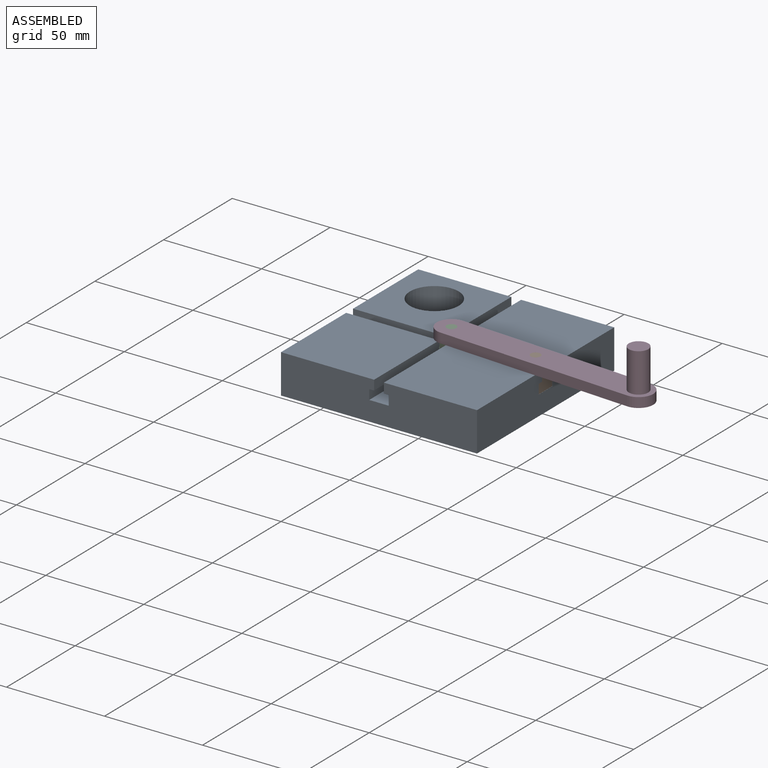
[diagram: assembled view]
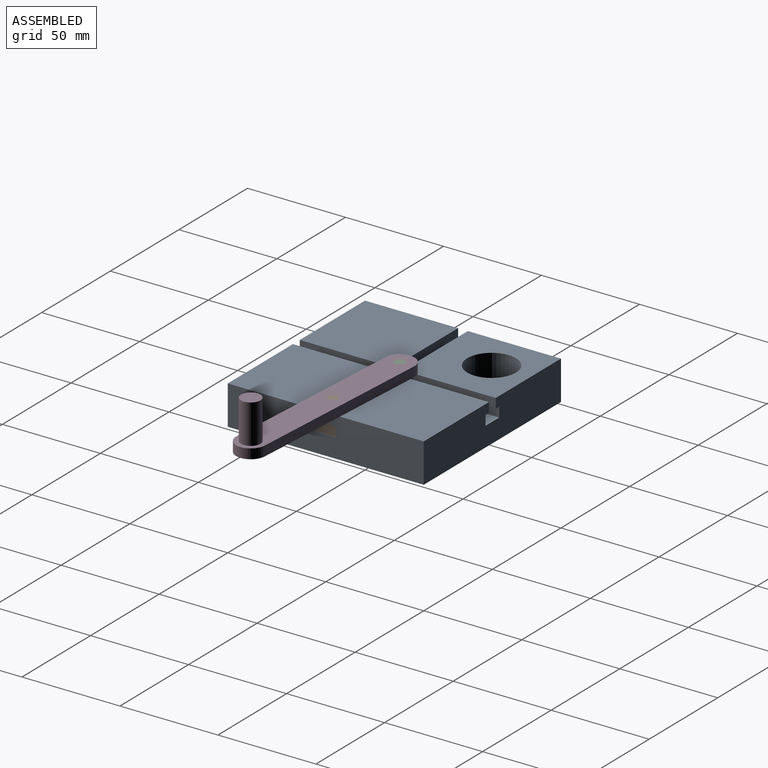
[diagram: assembled view, second angle]
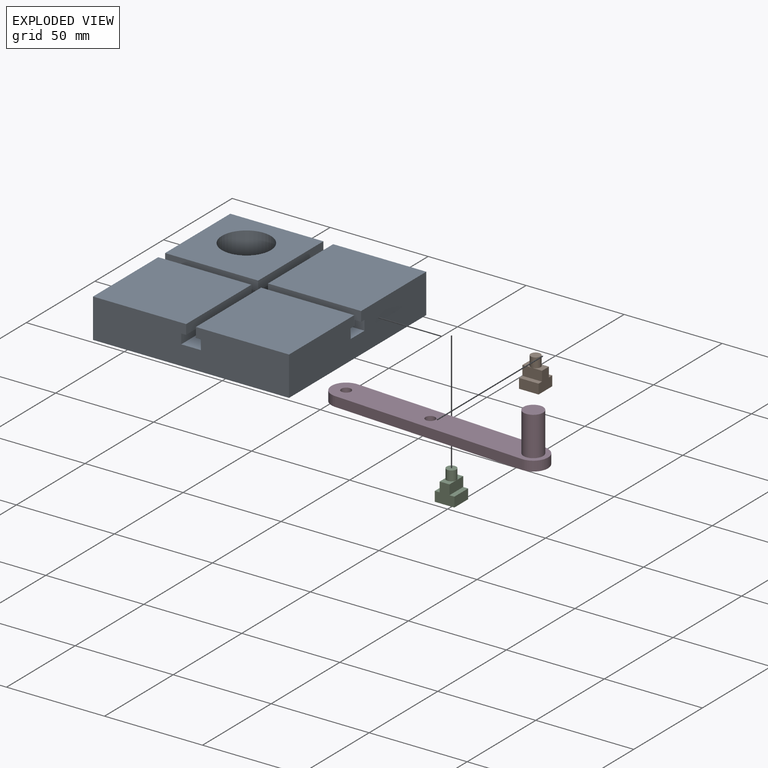
[diagram: exploded view]
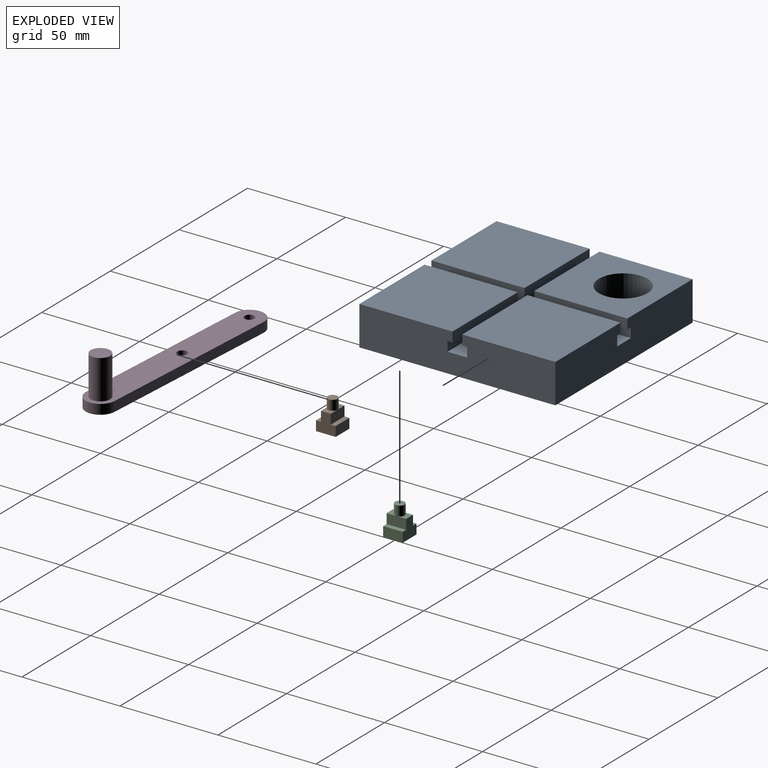
[diagram: exploded view, second angle]
ASSEMBLY  parts=4 mates=4
PART A: 31 faces, bbox 100x100x20 mm
  f0: plane 47.5x47.5mm, normal (0,0,1), area 2256.2mm2, adj f7,f10,f12,f23
  f1: plane 47.5x47.5mm, normal (0,0,1), area 1769.2mm2, adj f4,f10,f11,f29,f30
  f2: plane 47.5x47.5mm, normal (0,0,-1), area 231.3mm2, adj f4,f5,f10,f11,f27,f29
  f3: plane 47.5x47.5mm, normal (0,0,-1), area 231.3mm2, adj f9,f12,f19,f21,f22,f25
  f4: plane 47.5x5mm, normal (1,0,0), area 237.5mm2, adj f1,f2,f10,f29
  f5: plane 45x5mm, normal (1,0,0), area 225mm2, adj f2,f10,f18,f27
  f6: plane 45x5mm, normal (-1,0,0), area 225mm2, adj f10,f18,f20,f24
  f7: plane 47.5x5mm, normal (-1,0,0), area 237.5mm2, adj f0,f10,f20,f23
  f8: plane 47.5x47.5mm, normal (0,0,1), area 2256.2mm2, adj f9,f12,f21,f25
  f9: plane 100x20mm, normal (0,-1,0), area 1925mm2, adj f3,f8,f11,f12,f13,f14,f15,f16
  f10: plane 100x20mm, normal (0,1,0), area 1925mm2, adj f0,f1,f2,f4,f5,f6,f7,f11
  f11: plane 100x20mm, normal (-1,0,0), area 1925mm2, adj f1,f2,f9,f10,f13,f14,f16,f18
  f12: plane 100x20mm, normal (1,0,0), area 1925mm2, adj f0,f3,f8,f9,f10,f14,f18,f20
  f13: plane 47.5x47.5mm, normal (0,0,1), area 2256.3mm2, adj f9,f11,f15,f28
  f14: plane 100x100mm, normal (0,0,-1), area 9512.9mm2, adj f9,f10,f11,f12,f30
  f15: plane 47.5x5mm, normal (1,0,0), area 237.5mm2, adj f9,f13,f16,f28
  f16: plane 47.5x47.5mm, normal (0,0,-1), area 231.3mm2, adj f9,f11,f15,f17,f26,f28
  f17: plane 45x5mm, normal (1,0,0), area 225mm2, adj f9,f16,f18,f26
  f18: plane 100x100mm, normal (0,0,1), area 1900mm2, adj f5,f6,f9,f10,f11,f12,f17,f19
  f19: plane 45x5mm, normal (-1,0,0), area 225mm2, adj f3,f9,f18,f22
  f20: plane 47.5x47.5mm, normal (0,0,-1), area 231.3mm2, adj f6,f7,f10,f12,f23,f24
  f21: plane 47.5x5mm, normal (-1,0,0), area 237.5mm2, adj f3,f8,f9,f25
  f22: plane 45x5mm, normal (0,1,0), area 225mm2, adj f3,f12,f18,f19
  f23: plane 47.5x5mm, normal (0,-1,0), area 237.5mm2, adj f0,f7,f12,f20
  f24: plane 45x5mm, normal (0,-1,0), area 225mm2, adj f6,f12,f18,f20
  f25: plane 47.5x5mm, normal (0,1,0), area 237.5mm2, adj f3,f8,f12,f21
  f26: plane 45x5mm, normal (0,1,0), area 225mm2, adj f11,f16,f17,f18
  f27: plane 45x5mm, normal (0,-1,0), area 225mm2, adj f2,f5,f11,f18
  f28: plane 47.5x5mm, normal (0,1,0), area 237.5mm2, adj f11,f13,f15,f16
  f29: plane 47.5x5mm, normal (0,-1,0), area 237.5mm2, adj f1,f2,f4,f11
  f30: cylinder r=12.45mm len=24.9mm, axis (0,0,1), area 1564.7mm2, adj f1,f14
PART B: 13 faces, bbox 10x10x15 mm
  f0: plane 5x5mm, normal (0,0,1), area 15.2mm2, adj f2,f4,f9,f11
  f1: plane 10x2.5mm, normal (0,0,1), area 25mm2, adj f2,f8,f9,f10
  f2: plane 10x5mm, normal (1,0,0), area 50mm2, adj f0,f1,f3,f9,f10
  f3: plane 5x5mm, normal (0,0,1), area 15.2mm2, adj f2,f4,f10,f11
  f4: plane 10x5mm, normal (-1,0,0), area 50mm2, adj f0,f3,f5,f9,f10
  f5: plane 10x2.5mm, normal (0,0,1), area 25mm2, adj f4,f6,f9,f10
  f6: plane 10x5mm, normal (-1,0,0), area 50mm2, adj f5,f7,f9,f10
  f7: plane 10x10mm, normal (0,0,-1), area 100mm2, adj f6,f8,f9,f10
  f8: plane 10x5mm, normal (1,0,0), area 50mm2, adj f1,f7,f9,f10
  f9: plane 10x10mm, normal (0,1,0), area 75mm2, adj f0,f1,f2,f4,f5,f6,f7,f8
  f10: plane 10x10mm, normal (0,-1,0), area 75mm2, adj f1,f2,f3,f4,f5,f6,f7,f8
  f11: cylinder r=2.5mm len=5mm, axis (0,0,-1), area 78.5mm2, adj f0,f3,f12
  f12: plane 5x5mm, normal (0,0,1), area 19.6mm2, adj f11
PART C: same geometry as B
PART D: 10 faces, bbox 15x115x25 mm
  f0: plane 100x5mm, normal (1,0,0), area 500mm2, adj f1,f5,f6,f7
  f1: cylinder r=7.5mm len=15mm, axis (0,0,-1), area 117.8mm2, adj f0,f2,f6,f7
  f2: plane 100x5mm, normal (-1,0,0), area 500mm2, adj f1,f5,f6,f7
  f3: cylinder r=2.5mm len=5mm, axis (0,0,-1), area 78.5mm2, adj f6,f7
  f4: cylinder r=2.5mm len=5mm, axis (0,0,-1), area 78.5mm2, adj f6,f7
  f5: cylinder r=7.5mm len=15mm, axis (0,0,-1), area 117.8mm2, adj f0,f2,f6,f7
  f6: plane 115x15mm, normal (0,0,1), area 1558.9mm2, adj f0,f1,f2,f3,f4,f5,f8
  f7: plane 115x15mm, normal (0,0,-1), area 1637.4mm2, adj f0,f1,f2,f3,f4,f5
  f8: cylinder r=5mm len=20mm, axis (0,0,-1), area 628.3mm2, adj f6,f9
  f9: plane 10x10mm, normal (0,0,1), area 78.5mm2, adj f8
PLACE A t=(-50,50,0)mm
PLACE B rot(axis=(0,0,1),90deg) t=(-50.09,50,0)mm
PLACE C t=(-50,97.78,0)mm
PLACE D rot(axis=(0,0,-1),93.5deg) t=(17.76,142.43,20)mm
MATE revolute C.f11 <-> D.f4  axis (0,0,1) through (-50,52.78,25)mm
MATE slider A.f9 <-> C.f10  axis (0,-1,0) through (-55,0,10)mm
MATE slider B.f10 <-> A.f12  axis (1,0,0) through (-0.09,45,10)mm
MATE revolute B.f11 <-> D.f3  axis (0,0,1) through (-5.09,50,25)mm
